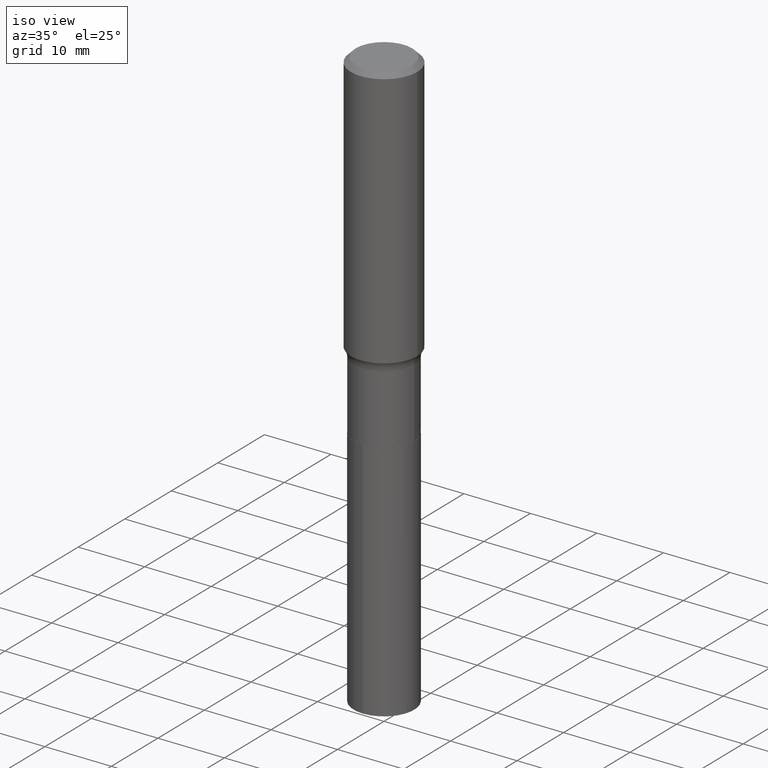
[diagram: clean part render]
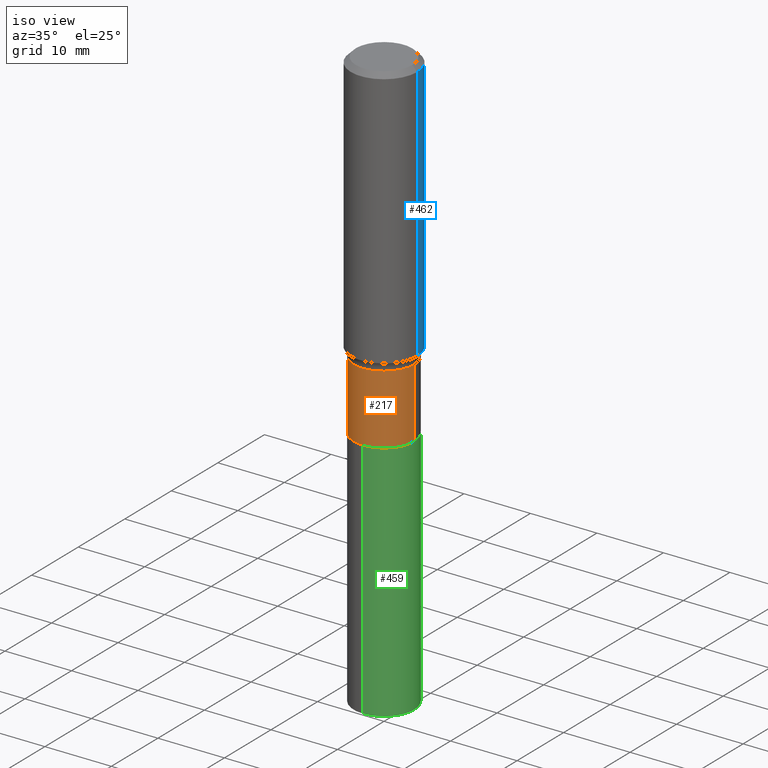
[diagram: same view with three faces highlighted in distinct colors, each labeled with its STEP entity id]
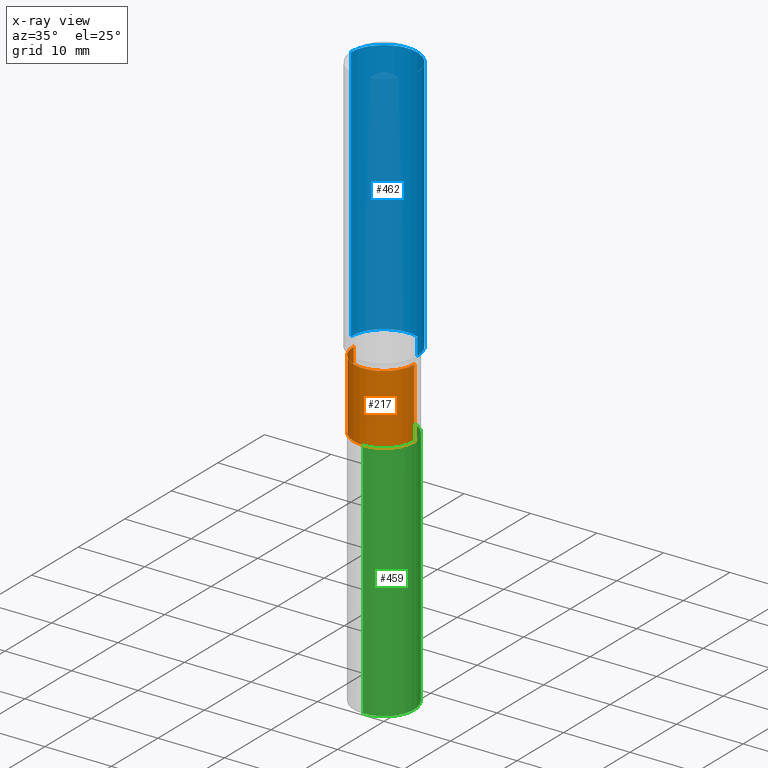
[diagram: x-ray of the same camera — body ghosted, the three highlighted faces saturated]
A machine part, iso view with three faces highlighted in distinct colors.
The next image is the same camera in x-ray (body ghosted, the three faces saturated) — at least one of them is partly hidden behind the body in this view.
Their STEP definitions:

[orange] entity #217 — the highlighted cylindrical surface (partial cylindrical patch) has radius 4.5504 mm, axis along (-0, 0, 1).
#9 = VECTOR ( 'NONE', #316, 39.37007874015748143 ) ;
#10 = LINE ( 'NONE', #193, #9 ) ;
#23 = DIRECTION ( 'NONE',  ( 1.000000000000000000, -6.982962677686267499E-15, 0.000000000000000000 ) ) ;
#29 = DIRECTION ( 'NONE',  ( -2.445468806185136877E-29, 3.491481338843145188E-15, 1.000000000000000000 ) ) ;
#42 = VERTEX_POINT ( 'NONE', #238 ) ;
#44 = DIRECTION ( 'NONE',  ( 1.000000000000000000, -6.982962677686267499E-15, 4.876176775795935793E-29 ) ) ;
#116 = CIRCLE ( 'NONE', #231, 0.1791499999999999759 ) ;
#119 = EDGE_LOOP ( 'NONE', ( #438, #406, #436, #442 ) ) ;
#165 = VECTOR ( 'NONE', #29, 39.37007874015748143 ) ;
#193 = CARTESIAN_POINT ( 'NONE',  ( -0.1791499999999999759, 1.272937311114219312E-15, -8.812272214191663486E-30 ) ) ;
#207 = VERTEX_POINT ( 'NONE', #279 ) ;
#217 = ADVANCED_FACE ( 'NONE', ( #402 ), #233, .T. ) ;
#231 = AXIS2_PLACEMENT_3D ( 'NONE', #249, #410, #435 ) ;
#233 = CYLINDRICAL_SURFACE ( 'NONE', #258, 0.1791499999999999759 ) ;
#238 = CARTESIAN_POINT ( 'NONE',  ( 0.1791500000000000314, -8.273414180522713146E-15, -2.011299999999999866 ) ) ;
#249 = CARTESIAN_POINT ( 'NONE',  ( 3.912260996134981658E-29, -5.585671845881263700E-15, -1.599799999999999889 ) ) ;
#258 = AXIS2_PLACEMENT_3D ( 'NONE', #464, #397, #44 ) ;
#269 = EDGE_CURVE ( 'NONE', #287, #42, #482, .T. ) ;
#279 = CARTESIAN_POINT ( 'NONE',  ( -0.1791499999999999759, -5.031106820234022294E-15, -1.599799999999999889 ) ) ;
#287 = VERTEX_POINT ( 'NONE', #335 ) ;
#316 = DIRECTION ( 'NONE',  ( -2.445468806185136877E-29, 3.491481338843145188E-15, 1.000000000000000000 ) ) ;
#334 = EDGE_CURVE ( 'NONE', #207, #411, #116, .T. ) ;
#335 = CARTESIAN_POINT ( 'NONE',  ( -0.1791500000000000314, -5.031106820234021505E-15, -2.011299999999999866 ) ) ;
#344 = CARTESIAN_POINT ( 'NONE',  ( 0.1791499999999999759, -1.250997763707494620E-15, 8.735670693838418171E-30 ) ) ;
#352 = LINE ( 'NONE', #344, #165 ) ;
#370 = CARTESIAN_POINT ( 'NONE',  ( 4.918571409880165014E-29, -7.022416416815218724E-15, -2.011299999999999866 ) ) ;
#378 = DIRECTION ( 'NONE',  ( -2.445468806185136597E-29, 3.491481338843145583E-15, 1.000000000000000000 ) ) ;
#383 = EDGE_CURVE ( 'NONE', #287, #207, #10, .T. ) ;
#397 = DIRECTION ( 'NONE',  ( -2.445468806185136597E-29, 3.491481338843145583E-15, 1.000000000000000000 ) ) ;
#402 = FACE_OUTER_BOUND ( 'NONE', #119, .T. ) ;
#406 = ORIENTED_EDGE ( 'NONE', *, *, #269, .T. ) ;
#410 = DIRECTION ( 'NONE',  ( -2.445468806185136597E-29, 3.491481338843145583E-15, 1.000000000000000000 ) ) ;
#411 = VERTEX_POINT ( 'NONE', #432 ) ;
#432 = CARTESIAN_POINT ( 'NONE',  ( 0.1791499999999999759, -6.836669609588758911E-15, -1.599799999999999889 ) ) ;
#435 = DIRECTION ( 'NONE',  ( 1.000000000000000000, -6.982962677686269866E-15, 0.000000000000000000 ) ) ;
#436 = ORIENTED_EDGE ( 'NONE', *, *, #450, .T. ) ;
#438 = ORIENTED_EDGE ( 'NONE', *, *, #383, .F. ) ;
#442 = ORIENTED_EDGE ( 'NONE', *, *, #334, .F. ) ;
#450 = EDGE_CURVE ( 'NONE', #42, #411, #352, .T. ) ;
#464 = CARTESIAN_POINT ( 'NONE',  ( 0.000000000000000000, 0.000000000000000000, 0.000000000000000000 ) ) ;
#473 = AXIS2_PLACEMENT_3D ( 'NONE', #370, #378, #23 ) ;
#482 = CIRCLE ( 'NONE', #473, 0.1791500000000000314 ) ;

[blue] entity #462 — the highlighted cylindrical surface (partial cylindrical patch) has radius 5 mm, axis along (-0, 0, 1).
#4 = CARTESIAN_POINT ( 'NONE',  ( 0.1968500000000002470, -6.787522268346197963E-15, -1.550323642009541203 ) ) ;
#8 = CARTESIAN_POINT ( 'NONE',  ( -0.1968500000000000527, -1.359307014894414260E-15, -0.02952750000000018554 ) ) ;
#24 = EDGE_CURVE ( 'NONE', #132, #390, #84, .T. ) ;
#25 = AXIS2_PLACEMENT_3D ( 'NONE', #417, #407, #57 ) ;
#31 = CARTESIAN_POINT ( 'NONE',  ( 0.1968500000000001360, -1.374596203102542594E-15, 9.598753983154306463E-30 ) ) ;
#53 = AXIS2_PLACEMENT_3D ( 'NONE', #460, #201, #114 ) ;
#57 = DIRECTION ( 'NONE',  ( 1.000000000000000000, -6.982962677686269866E-15, 0.000000000000000000 ) ) ;
#69 = EDGE_CURVE ( 'NONE', #200, #160, #454, .T. ) ;
#84 = CIRCLE ( 'NONE', #53, 0.1968500000000000527 ) ;
#90 = ORIENTED_EDGE ( 'NONE', *, *, #227, .T. ) ;
#108 = FACE_OUTER_BOUND ( 'NONE', #204, .T. ) ;
#114 = DIRECTION ( 'NONE',  ( 1.000000000000000000, -6.982962677686266711E-15, 0.000000000000000000 ) ) ;
#132 = VERTEX_POINT ( 'NONE', #266 ) ;
#139 = VECTOR ( 'NONE', #348, 39.37007874015748143 ) ;
#153 = DIRECTION ( 'NONE',  ( -2.445468806185136877E-29, 3.491481338843145188E-15, 1.000000000000000000 ) ) ;
#160 = VERTEX_POINT ( 'NONE', #457 ) ;
#164 = ORIENTED_EDGE ( 'NONE', *, *, #69, .T. ) ;
#178 = CYLINDRICAL_SURFACE ( 'NONE', #215, 0.1968500000000001360 ) ;
#190 = LINE ( 'NONE', #358, #349 ) ;
#200 = VERTEX_POINT ( 'NONE', #4 ) ;
#201 = DIRECTION ( 'NONE',  ( -2.445468806185136597E-29, 3.491481338843145583E-15, 1.000000000000000000 ) ) ;
#204 = EDGE_LOOP ( 'NONE', ( #164, #90, #333, #237 ) ) ;
#215 = AXIS2_PLACEMENT_3D ( 'NONE', #225, #456, #230 ) ;
#225 = CARTESIAN_POINT ( 'NONE',  ( 0.000000000000000000, 0.000000000000000000, 0.000000000000000000 ) ) ;
#227 = EDGE_CURVE ( 'NONE', #160, #390, #190, .T. ) ;
#230 = DIRECTION ( 'NONE',  ( 1.000000000000000000, -6.982962677686266711E-15, 4.876176775795935793E-29 ) ) ;
#237 = ORIENTED_EDGE ( 'NONE', *, *, #484, .F. ) ;
#266 = CARTESIAN_POINT ( 'NONE',  ( 0.1968500000000000527, -1.477690918335233688E-15, -0.02952750000000018554 ) ) ;
#333 = ORIENTED_EDGE ( 'NONE', *, *, #24, .F. ) ;
#348 = DIRECTION ( 'NONE',  ( -2.445468806185136877E-29, 3.491481338843145188E-15, 1.000000000000000000 ) ) ;
#349 = VECTOR ( 'NONE', #153, 39.37007874015748143 ) ;
#358 = CARTESIAN_POINT ( 'NONE',  ( -0.1968500000000001360, 1.398703375343758182E-15, -9.682923725166790684E-30 ) ) ;
#390 = VERTEX_POINT ( 'NONE', #8 ) ;
#407 = DIRECTION ( 'NONE',  ( -2.445468806185136597E-29, 3.491481338843145583E-15, 1.000000000000000000 ) ) ;
#417 = CARTESIAN_POINT ( 'NONE',  ( 3.791268106025665529E-29, -5.412926065243653988E-15, -1.550323642009541203 ) ) ;
#452 = LINE ( 'NONE', #31, #139 ) ;
#454 = CIRCLE ( 'NONE', #25, 0.1968500000000002470 ) ;
#456 = DIRECTION ( 'NONE',  ( -2.445468806185136597E-29, 3.491481338843145583E-15, 1.000000000000000000 ) ) ;
#457 = CARTESIAN_POINT ( 'NONE',  ( -0.1968500000000002470, -4.014222689899894622E-15, -1.550323642009541203 ) ) ;
#460 = CARTESIAN_POINT ( 'NONE',  ( 7.220858017463207734E-31, -1.030947152326916363E-16, -0.02952750000000018554 ) ) ;
#462 = ADVANCED_FACE ( 'NONE', ( #108 ), #178, .T. ) ;
#484 = EDGE_CURVE ( 'NONE', #200, #132, #452, .T. ) ;

[green] entity #459 — the highlighted cylindrical surface (partial cylindrical patch) has radius 4.5504 mm, axis along (-0, 0, 1).
#3 = DIRECTION ( 'NONE',  ( -2.445392753752402791E-29, 3.491590250255455996E-15, 1.000000000000000000 ) ) ;
#12 = VERTEX_POINT ( 'NONE', #396 ) ;
#13 = CARTESIAN_POINT ( 'NONE',  ( 1.272937311114268616E-15, 0.1791499999999929815, -2.011800000000000477 ) ) ;
#20 = EDGE_CURVE ( 'NONE', #284, #82, #401, .T. ) ;
#21 = ORIENTED_EDGE ( 'NONE', *, *, #388, .F. ) ;
#28 = AXIS2_PLACEMENT_3D ( 'NONE', #65, #72, #307 ) ;
#32 = DIRECTION ( 'NONE',  ( -6.982962677686265133E-15, -1.000000000000000000, 3.049788438363675772E-15 ) ) ;
#65 = CARTESIAN_POINT ( 'NONE',  ( 4.919794144283257255E-29, -7.024162157484639438E-15, -2.011800000000000033 ) ) ;
#72 = DIRECTION ( 'NONE',  ( -2.445392753752402791E-29, 3.491590250255455996E-15, 1.000000000000000000 ) ) ;
#82 = VERTEX_POINT ( 'NONE', #135 ) ;
#96 = ORIENTED_EDGE ( 'NONE', *, *, #470, .T. ) ;
#99 = CIRCLE ( 'NONE', #253, 0.1791500000000000314 ) ;
#122 = CARTESIAN_POINT ( 'NONE',  ( -1.250997763707445513E-15, -0.1791500000000070536, -2.011799999999999145 ) ) ;
#135 = CARTESIAN_POINT ( 'NONE',  ( 1.272937311114303917E-15, 0.1791499999999929815, -2.011800000000000477 ) ) ;
#140 = CARTESIAN_POINT ( 'NONE',  ( 1.272937311114304312E-15, 0.1791499999999880688, -3.447414221972331383 ) ) ;
#159 = LINE ( 'NONE', #122, #283 ) ;
#173 = VECTOR ( 'NONE', #281, 39.37007874015748143 ) ;
#180 = DIRECTION ( 'NONE',  ( -6.982962677686265133E-15, -1.000000000000000000, 3.049788438363675772E-15 ) ) ;
#197 = VERTEX_POINT ( 'NONE', #354 ) ;
#226 = DIRECTION ( 'NONE',  ( -2.445392753752402791E-29, 3.491590250255455602E-15, 1.000000000000000000 ) ) ;
#241 = CIRCLE ( 'NONE', #360, 0.1791500000000000314 ) ;
#253 = AXIS2_PLACEMENT_3D ( 'NONE', #431, #423, #180 ) ;
#281 = DIRECTION ( 'NONE',  ( -2.445392753752402791E-29, 3.491590250255455602E-15, 1.000000000000000000 ) ) ;
#283 = VECTOR ( 'NONE', #226, 39.37007874015748143 ) ;
#284 = VERTEX_POINT ( 'NONE', #140 ) ;
#304 = FACE_OUTER_BOUND ( 'NONE', #451, .T. ) ;
#307 = DIRECTION ( 'NONE',  ( -6.982962677686265133E-15, -1.000000000000000000, 3.049788438363675772E-15 ) ) ;
#354 = CARTESIAN_POINT ( 'NONE',  ( -1.250997763707445513E-15, -0.1791500000000070536, -2.011799999999999145 ) ) ;
#360 = AXIS2_PLACEMENT_3D ( 'NONE', #426, #3, #32 ) ;
#388 = EDGE_CURVE ( 'NONE', #12, #197, #159, .T. ) ;
#391 = CYLINDRICAL_SURFACE ( 'NONE', #28, 0.1791500000000000314 ) ;
#392 = ORIENTED_EDGE ( 'NONE', *, *, #430, .F. ) ;
#396 = CARTESIAN_POINT ( 'NONE',  ( -1.250997763707411000E-15, -0.1791500000000121329, -3.447414221972330051 ) ) ;
#401 = LINE ( 'NONE', #13, #173 ) ;
#423 = DIRECTION ( 'NONE',  ( -2.445392753752402791E-29, 3.491590250255455996E-15, 1.000000000000000000 ) ) ;
#426 = CARTESIAN_POINT ( 'NONE',  ( 8.430434759878289213E-29, -1.203673877805130082E-14, -3.447414221972330495 ) ) ;
#430 = EDGE_CURVE ( 'NONE', #197, #82, #99, .T. ) ;
#431 = CARTESIAN_POINT ( 'NONE',  ( 4.919794144283257255E-29, -7.024162157484639438E-15, -2.011800000000000033 ) ) ;
#451 = EDGE_LOOP ( 'NONE', ( #96, #481, #392, #21 ) ) ;
#459 = ADVANCED_FACE ( 'NONE', ( #304 ), #391, .T. ) ;
#470 = EDGE_CURVE ( 'NONE', #12, #284, #241, .T. ) ;
#481 = ORIENTED_EDGE ( 'NONE', *, *, #20, .T. ) ;